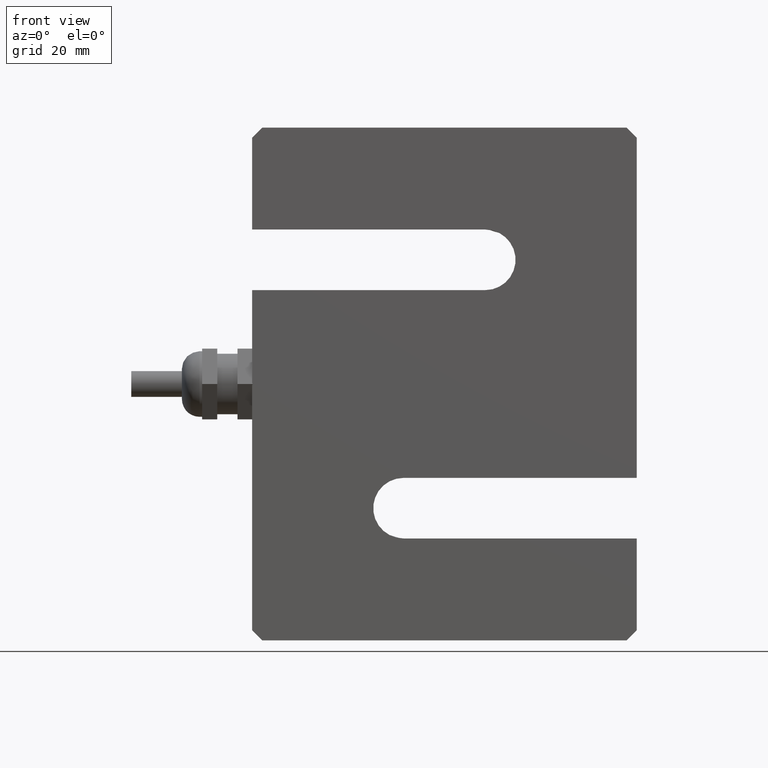
[diagram: clean part render]
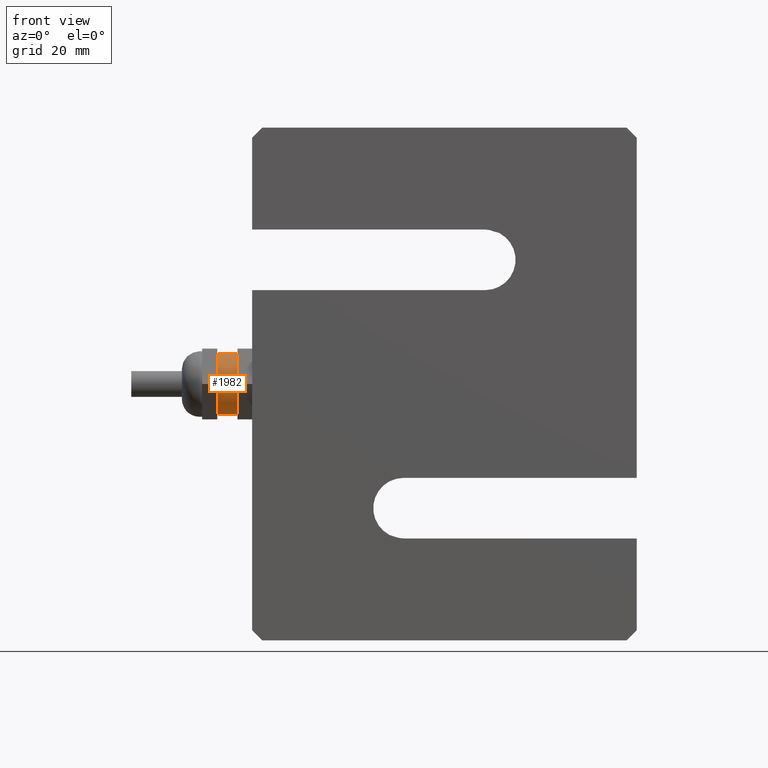
[diagram: same view with one face highlighted and labeled with its STEP entity id]
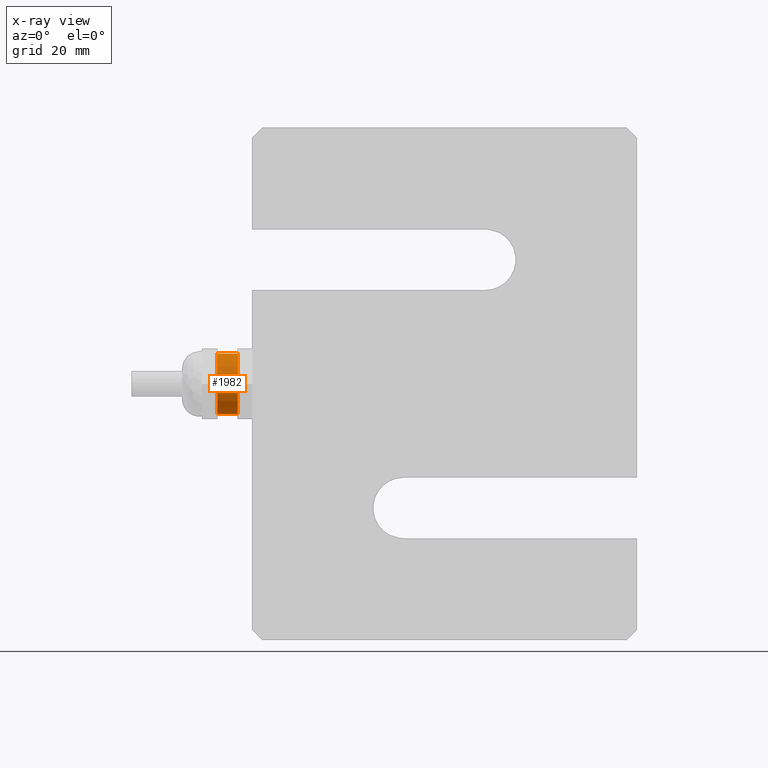
[diagram: x-ray of the same camera — body ghosted, the highlighted face saturated]
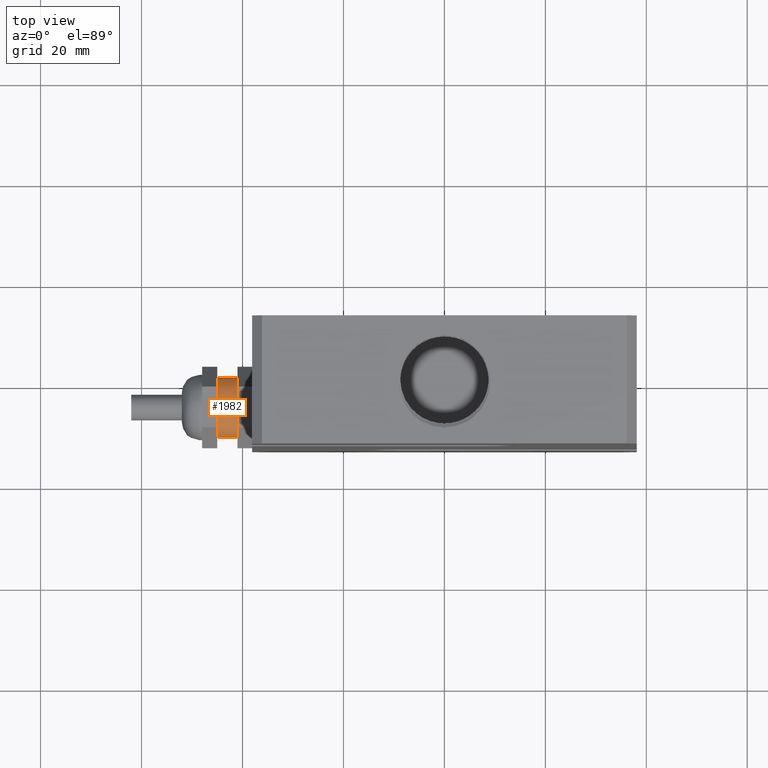
[diagram: same view with one face highlighted and labeled with its STEP entity id]
A machine part, front view. The second image highlights one B-rep face of the part: STEP entity #1982.
The next image is the same camera in x-ray: the body ghosted, the highlighted face saturated — about 0% of this face is hidden behind the body in this view.
A second angle (top view) of the same face is appended — the face is thin or edge-on in the first view.
In plain terms, the highlighted cylindrical surface (bore or boss wall) has radius 6 mm, axis along (-1, 0, 0).
Its self-contained STEP definition (entity closure, byte-faithful):
#220=FACE_OUTER_BOUND('',#339,.T.);
#339=EDGE_LOOP('',(#1341,#1342,#1343,#1344));
#470=LINE('',#2789,#616);
#616=VECTOR('',#2317,6.);
#748=CIRCLE('',#2115,6.);
#749=CIRCLE('',#2124,6.);
#790=VERTEX_POINT('',#2760);
#797=VERTEX_POINT('',#2788);
#996=EDGE_CURVE('',#790,#790,#748,.T.);
#1009=EDGE_CURVE('',#790,#797,#470,.T.);
#1010=EDGE_CURVE('',#797,#797,#749,.T.);
#1341=ORIENTED_EDGE('',*,*,#996,.F.);
#1342=ORIENTED_EDGE('',*,*,#1009,.T.);
#1343=ORIENTED_EDGE('',*,*,#1010,.F.);
#1344=ORIENTED_EDGE('',*,*,#1009,.F.);
#1902=CYLINDRICAL_SURFACE('',#2123,6.);
#1982=ADVANCED_FACE('',(#220),#1902,.T.);
#2115=AXIS2_PLACEMENT_3D('',#2761,#2287,#2288);
#2123=AXIS2_PLACEMENT_3D('',#2787,#2315,#2316);
#2124=AXIS2_PLACEMENT_3D('',#2790,#2318,#2319);
#2287=DIRECTION('center_axis',(1.,0.,0.));
#2288=DIRECTION('ref_axis',(0.,0.,-1.));
#2315=DIRECTION('center_axis',(1.,0.,0.));
#2316=DIRECTION('ref_axis',(0.,0.,-1.));
#2317=DIRECTION('',(-1.,0.,0.));
#2318=DIRECTION('center_axis',(-1.,0.,0.));
#2319=DIRECTION('ref_axis',(0.,0.,-1.));
#2760=CARTESIAN_POINT('',(7.,-7.34788079488412E-16,6.));
#2761=CARTESIAN_POINT('Origin',(7.,0.,0.));
#2787=CARTESIAN_POINT('Origin',(3.,0.,0.));
#2788=CARTESIAN_POINT('',(3.,-7.34788079488412E-16,6.));
#2789=CARTESIAN_POINT('',(3.,-7.34788079488412E-16,6.));
#2790=CARTESIAN_POINT('Origin',(3.,0.,0.));